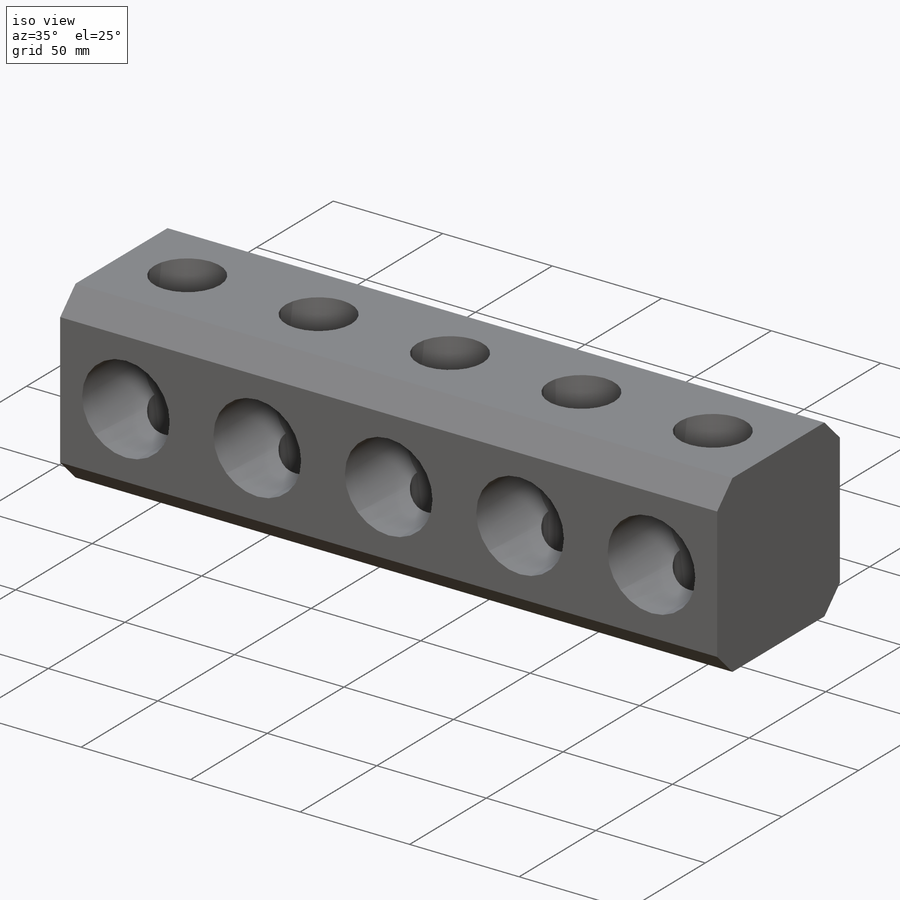
[diagram: iso view]
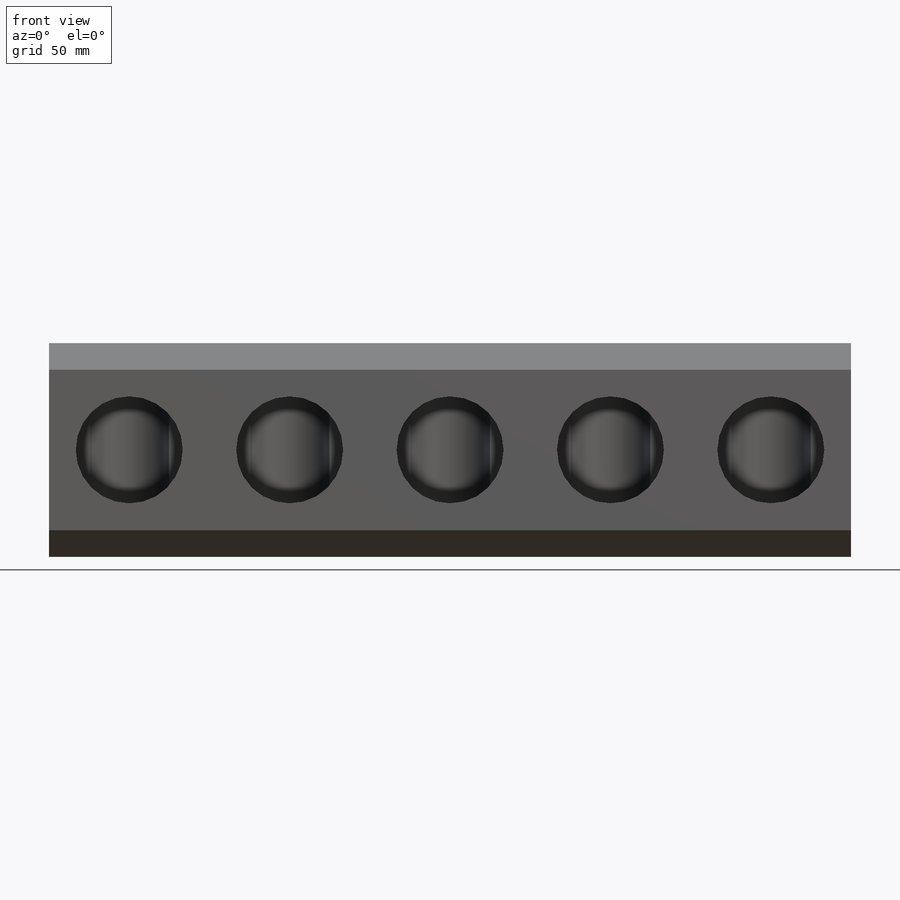
[diagram: front view]
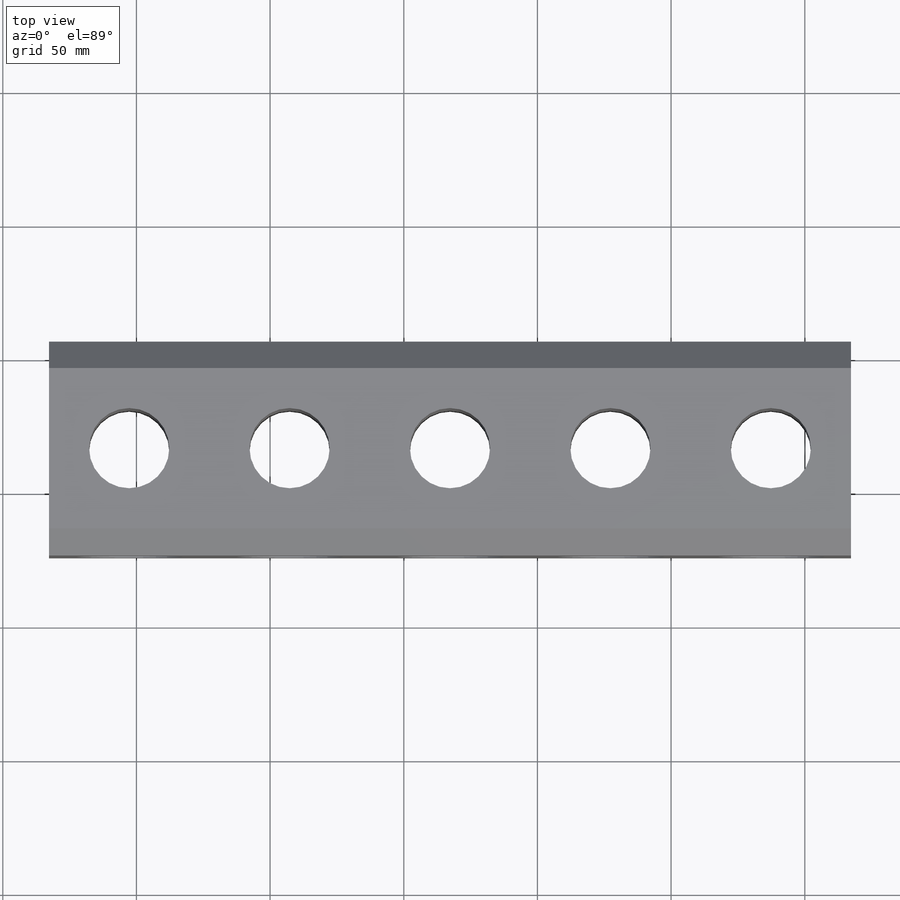
[diagram: top view]
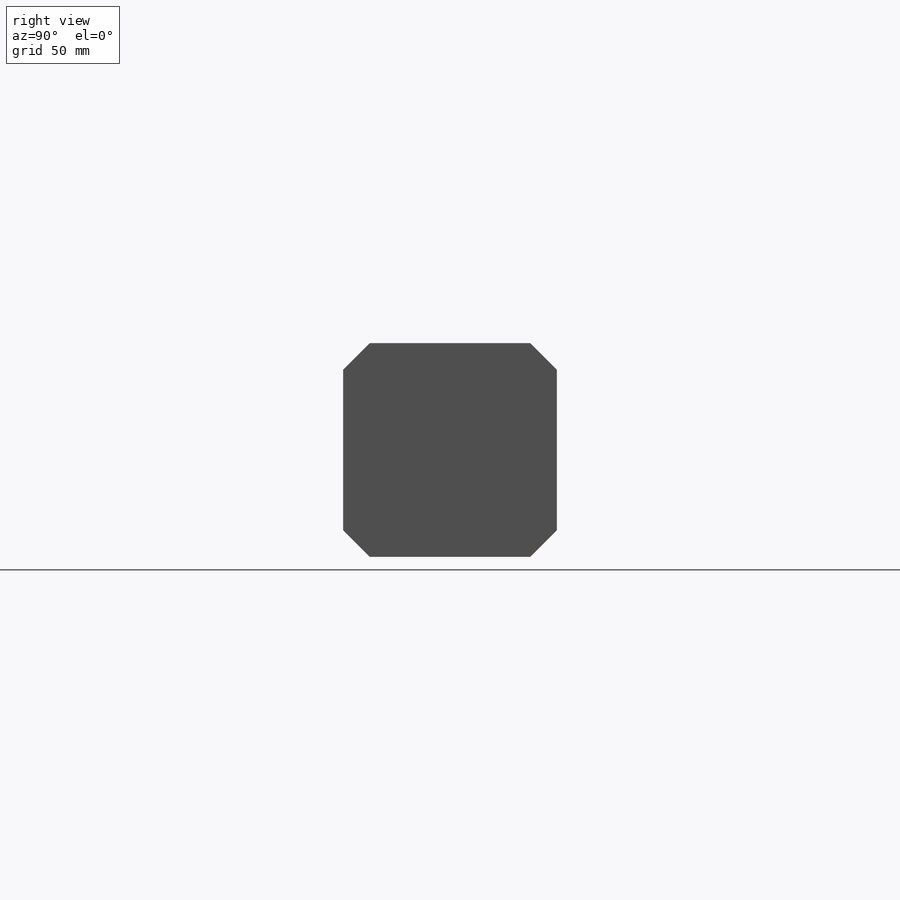
[diagram: right view]
SOLIDWORKS PART (.sldprt)
format: sldprt  version: not decoded by parser v0  size: 239,104 bytes
history: native  units: mm
features: plane x3, sketch x3, cut_extrude x2, material x1, extrude x1, chamfer x1 (+10 scaffold rows collapsed)
feature tree (21):
  scaffold x10  (default folders/planes/origin — collapsed)
  material  "Material <sin especificar>"
  plane  "Alzado"
  plane  "Planta"
  plane  "Vista lateral"
  sketch  "Croquis1"  dims[D1=300.0mm D2=80.0mm]
  extrude  "Saliente-Extruir1"  Depth=80mm
  chamfer  "Chaflán1"  Distance=10mm Angle=45deg
  sketch  "Croquis2"  dims[D1=40.0mm D2=40.0mm D3=40.0mm D4=40.0mm D5=40.0mm D6=60.0mm D7=60.0mm D8=60.0mm D9=60.0mm]
  cut_extrude  "Cortar-Extruir1"  Depth=40mm
  sketch  "Croquis3"  dims[c1.D1=30.0mm c1.D2=30.0mm c1.D3=30.0mm c1.D4=30.0mm c1.D5=30.0mm c1.D6=30.0mm c2.D1=30.0mm c2.D6=60.0mm c2.D7=60.0mm c3.D6=60.0mm c3.D7=60.0mm c3.D8=60.0mm c3.D9=60.0mm]
  cut_extrude  "Cortar-Extruir2"  Depth=200mm
decode coverage: 7 of 7 modeling features carry decoded parameters
note: suppression state not decoded; provenance and decode notes live in map.json
